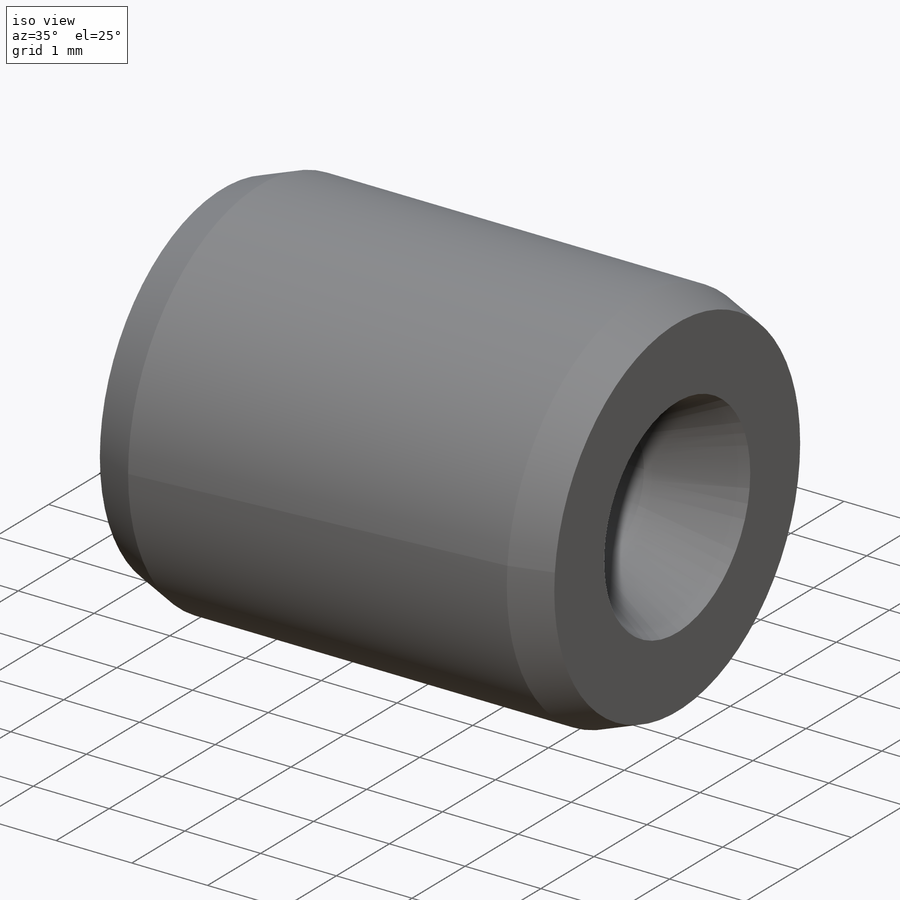
[diagram: iso view]
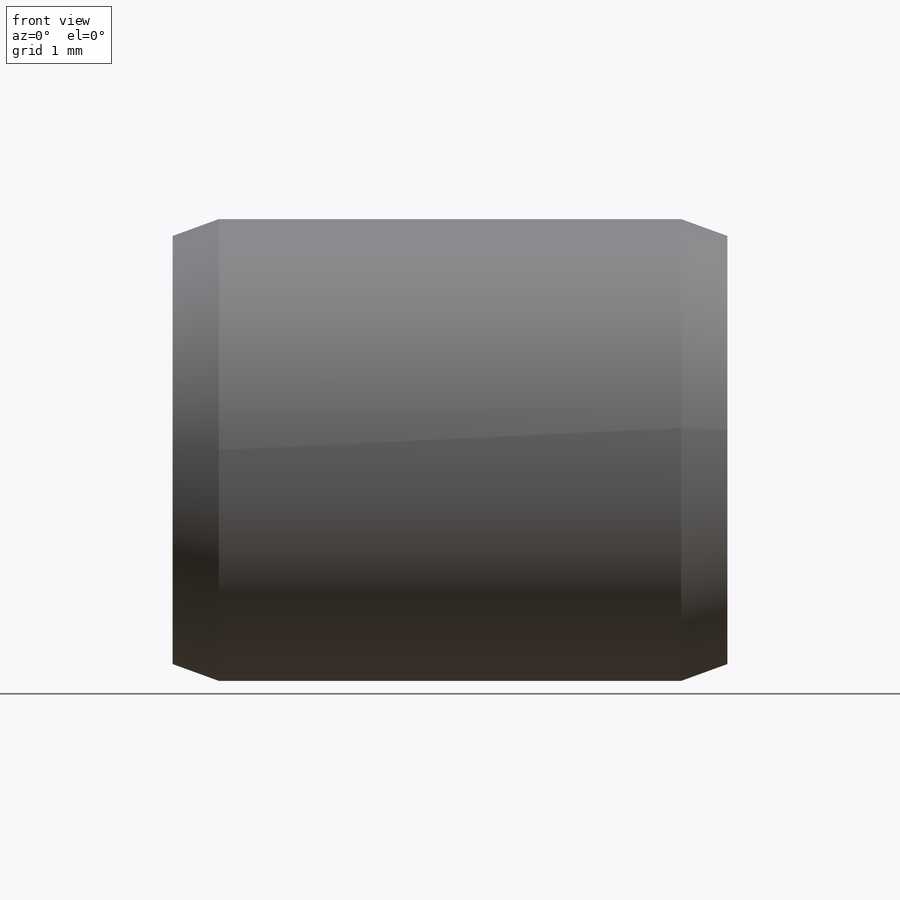
[diagram: front view]
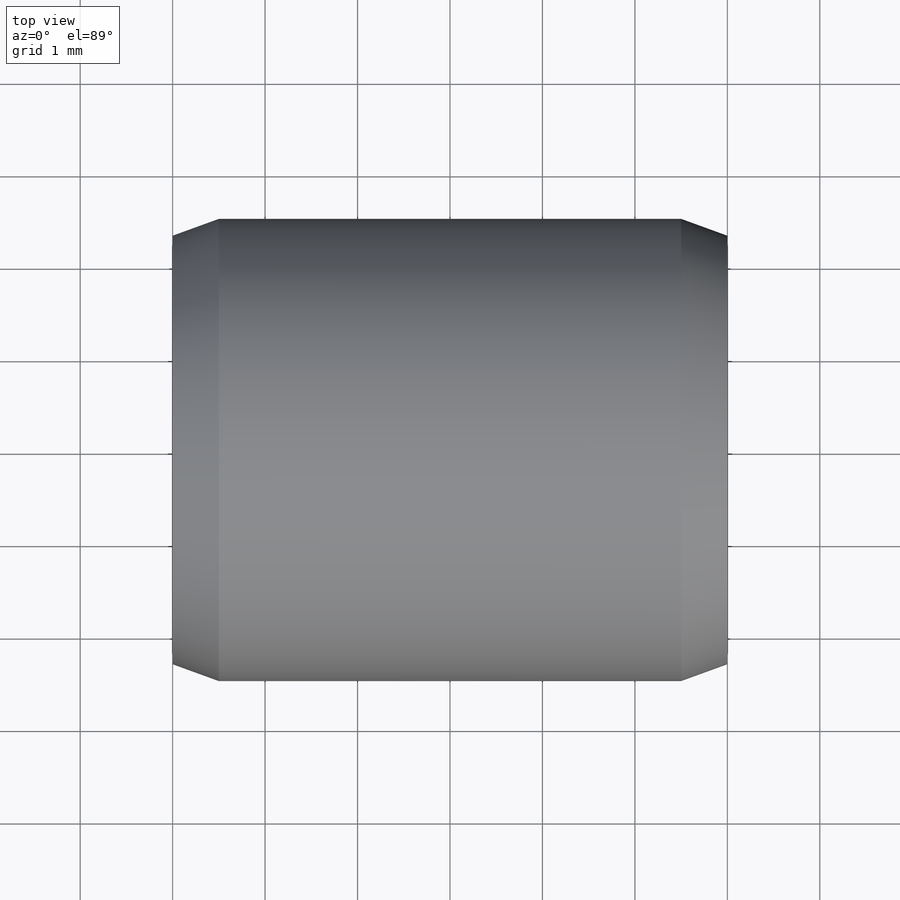
[diagram: top view]
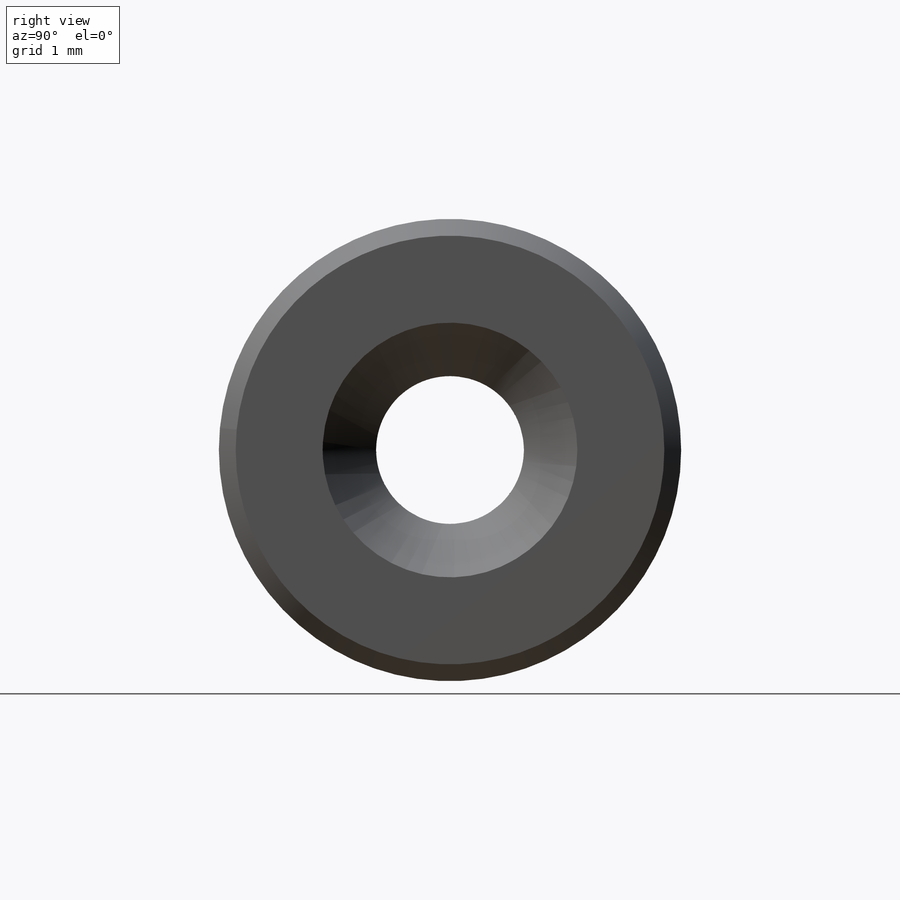
[diagram: right view]
SOLIDWORKS PART (.sldprt)
format: sldprt  version: not decoded by parser v0  size: 247,808 bytes
history: native  units: mm
features: plane x3, sketch x3, chamfer x2, material x1, revolve x1, hole x1, thread x1 (+9 scaffold rows collapsed)
feature tree (21):
  scaffold x9  (default folders/planes/origin — collapsed)
  material  "1.4301 (X5CrNi18-10)"
  plane  "Vorne"
  plane  "Oben"
  plane  "Rechts"
  sketch  "Skizze1"  dims[D1=1.0mm D2=5.0mm D3=6.0mm]
  revolve  "Rotation1"  Angle=360deg
  hole  "M2 Gewindebohrung1"  [1 undecoded]
  sketch  "Skizze3"
  thread  "Bohrungsgewinde1"  Diameter=2mm  [1 undecoded]
  sketch  "Skizze2"  dims[hole-wizard template sketch: 60 standard entries collapsed; hole parameters kept: c18.Bohrungstiefe=6.0mm]
  chamfer  "Fase1"  Distance=0.5mm Angle=20deg
  chamfer  "Fase2"  Distance=1mm Angle=30deg
decode coverage: 6 of 8 modeling features carry decoded parameters
note: ~ marks probable driven/reference dimensions
note: 2 parameter values undecoded
note: suppression state not decoded; provenance and decode notes live in map.json
